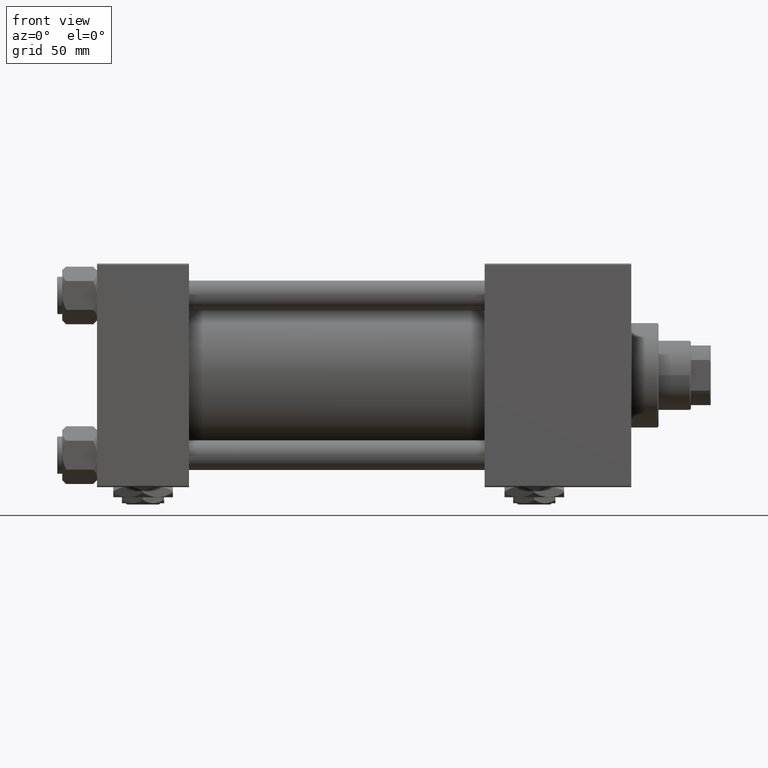
[diagram: clean part render]
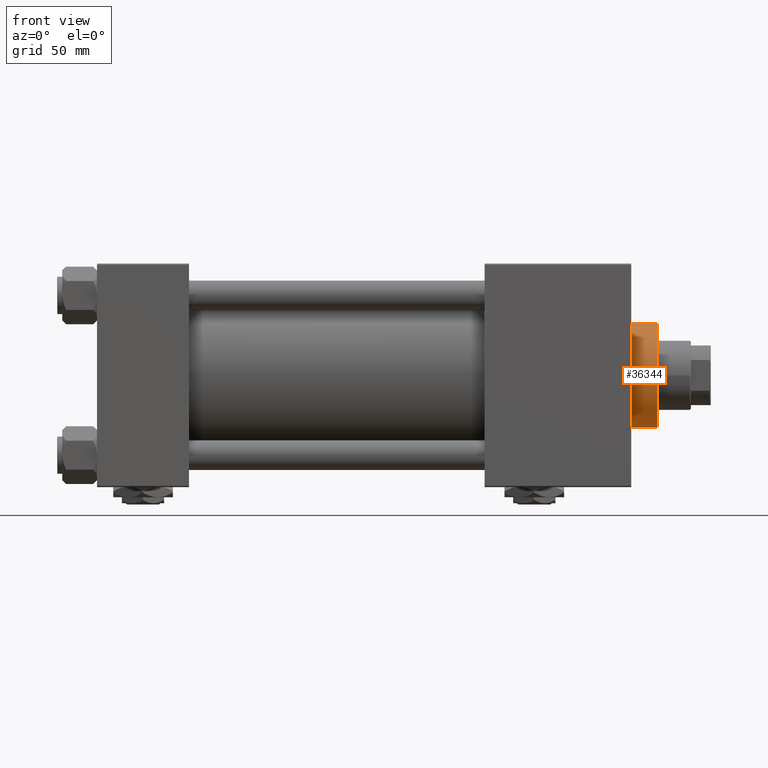
[diagram: same view with one face highlighted and labeled with its STEP entity id]
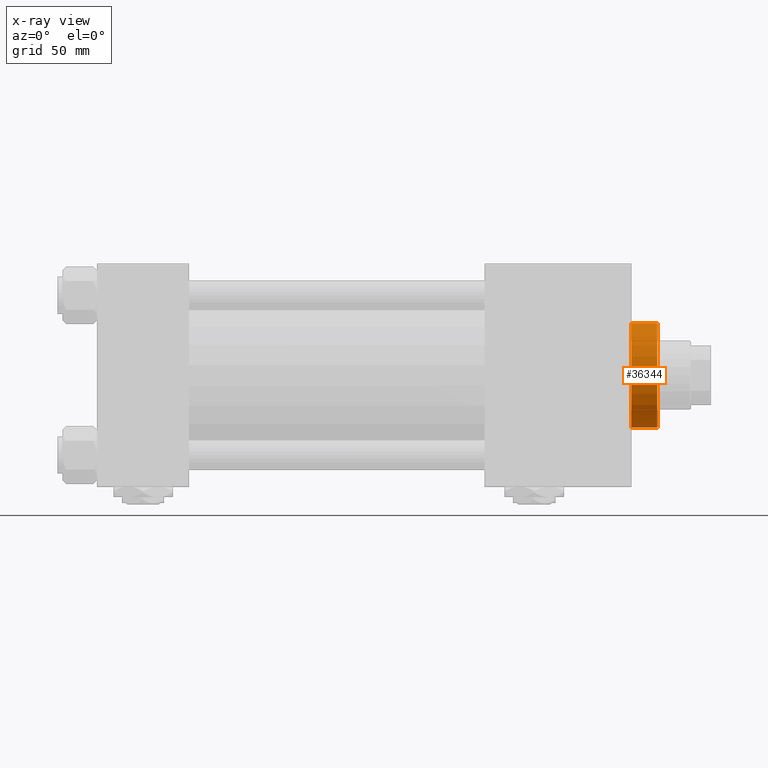
[diagram: x-ray of the same camera — body ghosted, the highlighted face saturated]
A machine part, front view. The second image highlights one B-rep face of the part: STEP entity #36344.
The next image is the same camera in x-ray: the body ghosted, the highlighted face saturated — about 0% of this face is hidden behind the body in this view.
In plain terms, the highlighted cylindrical surface (partial cylindrical patch) has radius 21 mm, axis along (-1, -0, -0).
Its self-contained STEP definition (entity closure, byte-faithful):
#457 = CARTESIAN_POINT ( 'NONE',  ( -21.00000000000000000, 0.000000000000000000, 39.69999999999999574 ) ) ;
#640 = VERTEX_POINT ( 'NONE', #26455 ) ;
#865 = AXIS2_PLACEMENT_3D ( 'NONE', #12752, #48581, #20716 ) ;
#2542 = DIRECTION ( 'NONE',  ( -1.000000000000000000, 0.000000000000000000, 0.000000000000000000 ) ) ;
#3623 = VERTEX_POINT ( 'NONE', #10622 ) ;
#5053 = EDGE_CURVE ( 'NONE', #26043, #37731, #9080, .T. ) ;
#7276 = ORIENTED_EDGE ( 'NONE', *, *, #5053, .T. ) ;
#7971 = VECTOR ( 'NONE', #16598, 1000.000000000000000 ) ;
#9080 = CIRCLE ( 'NONE', #42997, 21.00000000000000000 ) ;
#9333 = EDGE_LOOP ( 'NONE', ( #52092, #7276, #13761, #42048 ) ) ;
#10231 = CYLINDRICAL_SURFACE ( 'NONE', #43017, 21.00000000000000000 ) ;
#10622 = CARTESIAN_POINT ( 'NONE',  ( -21.00000000000000000, 0.000000000000000000, 28.69999999999999929 ) ) ;
#12421 = EDGE_CURVE ( 'NONE', #26043, #640, #16264, .T. ) ;
#12752 = CARTESIAN_POINT ( 'NONE',  ( 0.000000000000000000, 0.000000000000000000, 28.69999999999999929 ) ) ;
#13761 = ORIENTED_EDGE ( 'NONE', *, *, #17194, .T. ) ;
#16264 = LINE ( 'NONE', #25003, #21320 ) ;
#16598 = DIRECTION ( 'NONE',  ( -0.000000000000000000, -0.000000000000000000, -1.000000000000000000 ) ) ;
#17194 = EDGE_CURVE ( 'NONE', #37731, #3623, #40216, .T. ) ;
#20716 = DIRECTION ( 'NONE',  ( 1.000000000000000000, 0.000000000000000000, 0.000000000000000000 ) ) ;
#21320 = VECTOR ( 'NONE', #48643, 1000.000000000000000 ) ;
#23335 = CARTESIAN_POINT ( 'NONE',  ( 0.000000000000000000, 0.000000000000000000, 39.19999999999999574 ) ) ;
#23706 = CIRCLE ( 'NONE', #865, 21.00000000000000000 ) ;
#25003 = CARTESIAN_POINT ( 'NONE',  ( 21.00000000000000000, 2.571758278209441661E-15, 39.69999999999999574 ) ) ;
#26043 = VERTEX_POINT ( 'NONE', #43551 ) ;
#26455 = CARTESIAN_POINT ( 'NONE',  ( 21.00000000000000000, 2.571758278209441661E-15, 28.69999999999999929 ) ) ;
#27166 = DIRECTION ( 'NONE',  ( -0.000000000000000000, -0.000000000000000000, -1.000000000000000000 ) ) ;
#36344 = ADVANCED_FACE ( 'NONE', ( #38594 ), #10231, .T. ) ;
#37415 = CARTESIAN_POINT ( 'NONE',  ( -21.00000000000000000, 0.000000000000000000, 39.19999999999999574 ) ) ;
#37562 = DIRECTION ( 'NONE',  ( 1.000000000000000000, 0.000000000000000000, 0.000000000000000000 ) ) ;
#37731 = VERTEX_POINT ( 'NONE', #37415 ) ;
#38594 = FACE_OUTER_BOUND ( 'NONE', #9333, .T. ) ;
#39519 = DIRECTION ( 'NONE',  ( 0.000000000000000000, 0.000000000000000000, -1.000000000000000000 ) ) ;
#40216 = LINE ( 'NONE', #457, #7971 ) ;
#42048 = ORIENTED_EDGE ( 'NONE', *, *, #42194, .T. ) ;
#42194 = EDGE_CURVE ( 'NONE', #3623, #640, #23706, .T. ) ;
#42593 = CARTESIAN_POINT ( 'NONE',  ( 0.000000000000000000, 0.000000000000000000, 39.69999999999999574 ) ) ;
#42997 = AXIS2_PLACEMENT_3D ( 'NONE', #23335, #39519, #37562 ) ;
#43017 = AXIS2_PLACEMENT_3D ( 'NONE', #42593, #27166, #2542 ) ;
#43551 = CARTESIAN_POINT ( 'NONE',  ( 21.00000000000000000, 2.571758278209441661E-15, 39.19999999999999574 ) ) ;
#48581 = DIRECTION ( 'NONE',  ( 0.000000000000000000, 0.000000000000000000, 1.000000000000000000 ) ) ;
#48643 = DIRECTION ( 'NONE',  ( -0.000000000000000000, -0.000000000000000000, -1.000000000000000000 ) ) ;
#52092 = ORIENTED_EDGE ( 'NONE', *, *, #12421, .F. ) ;